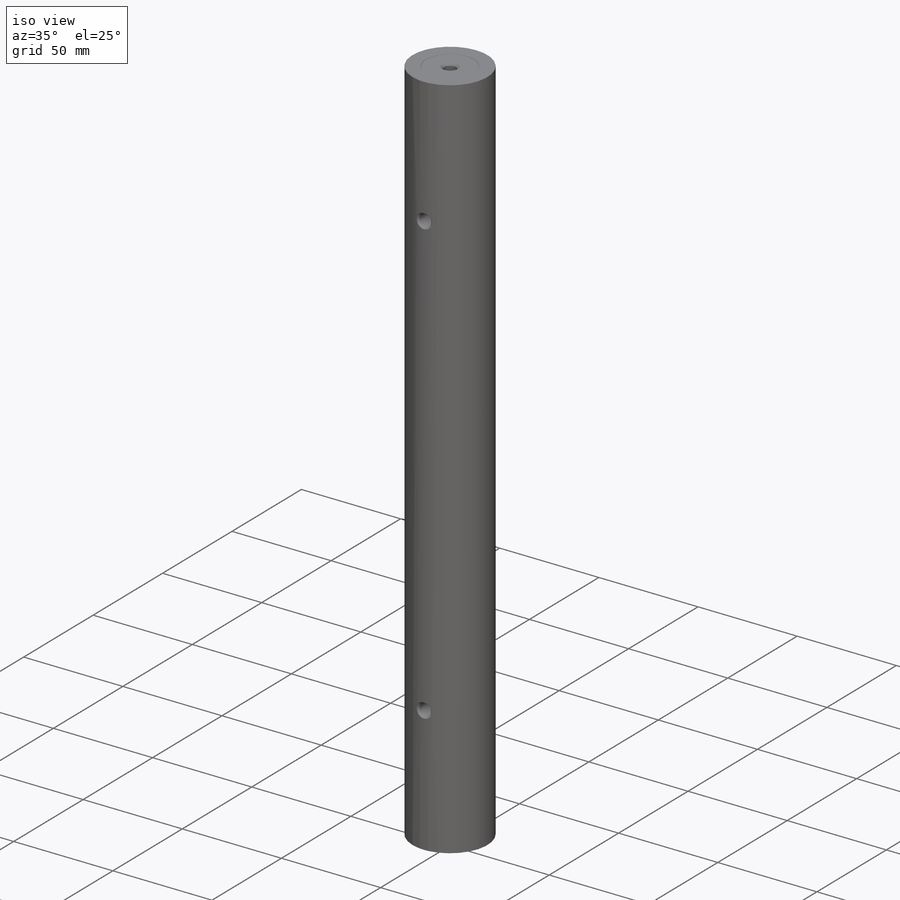
[diagram: iso view]
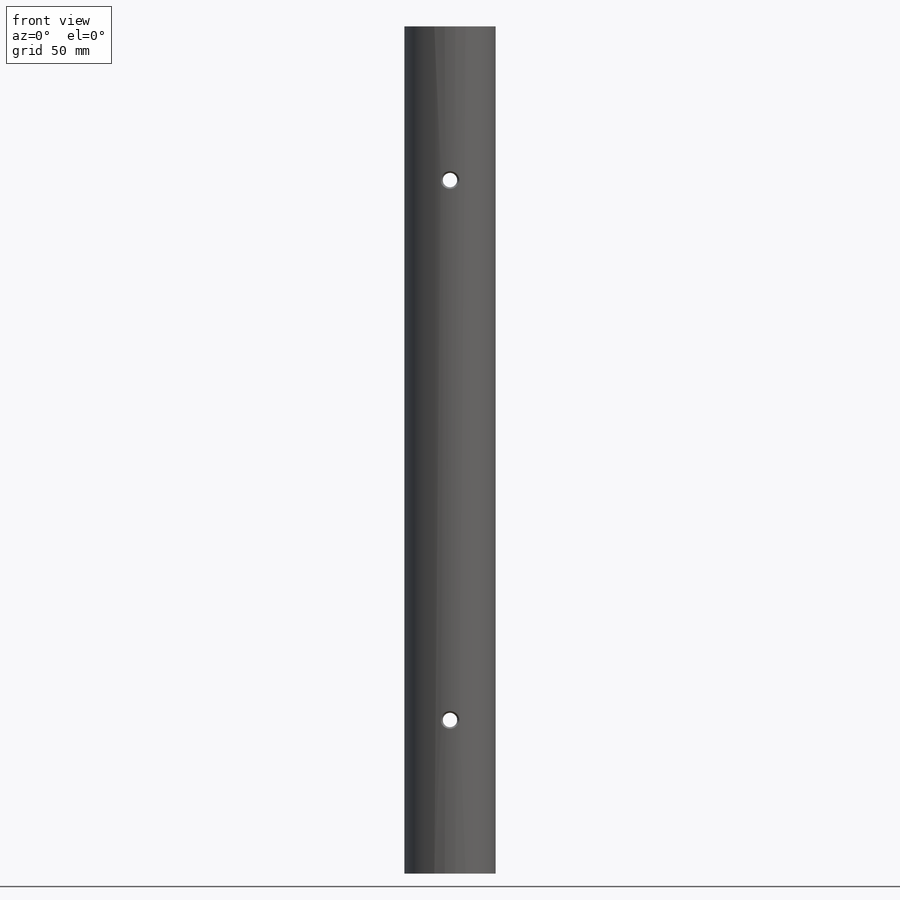
[diagram: front view]
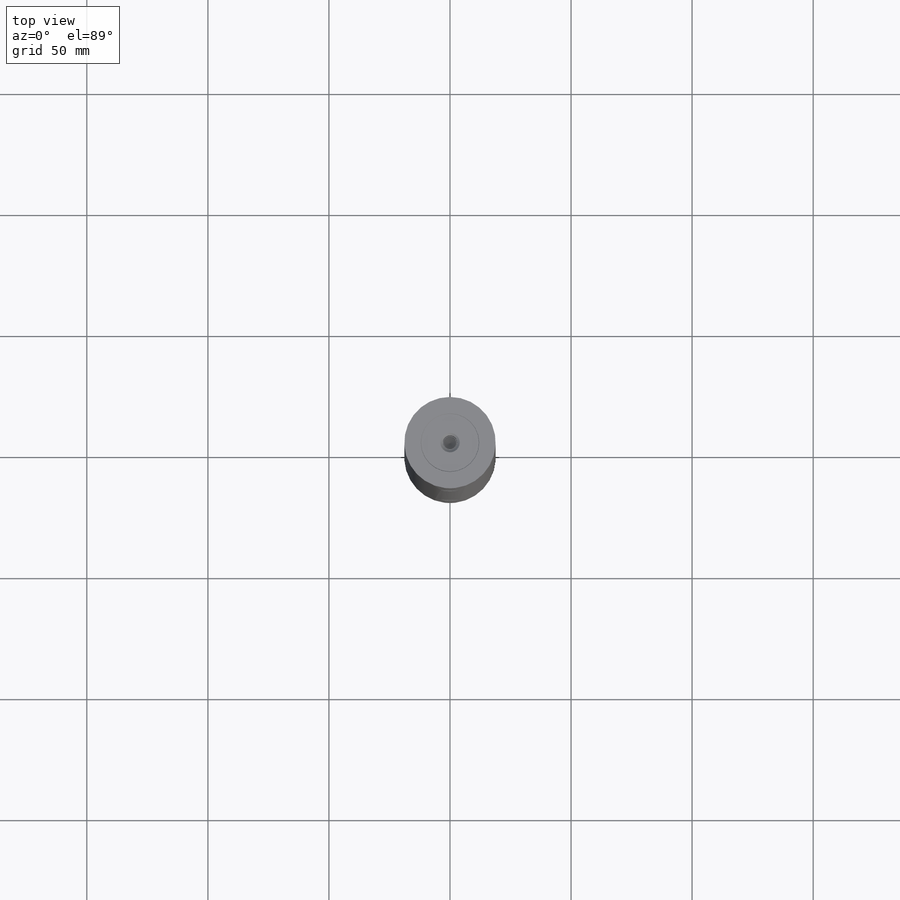
[diagram: top view]
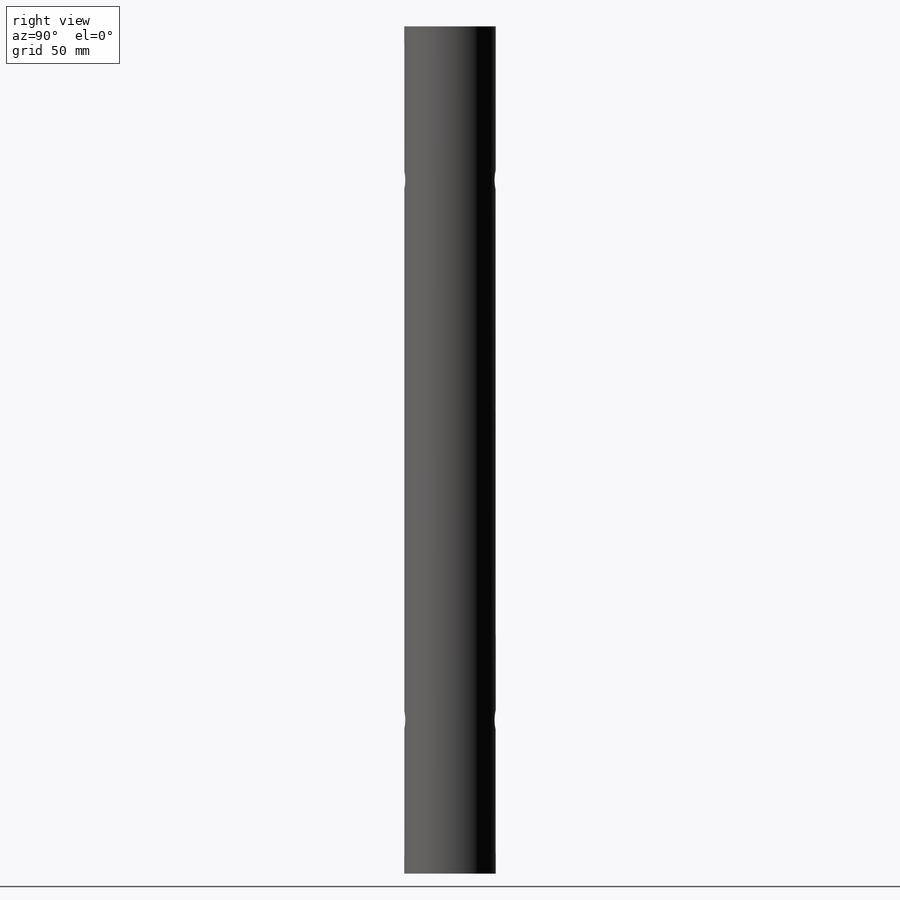
[diagram: right view]
SOLIDWORKS PART (.sldprt)
format: sldprt  version: not decoded by parser v0  size: 198,144 bytes
history: native  units: mm
features: sketch x6, cut_revolve x2, material x1, extrude x1, hole x1, mirror x1, plane x1, cut_extrude x1, chamfer x1 (+13 scaffold rows collapsed)
feature tree (28):
  scaffold x13  (default folders/planes/origin — collapsed)
  material  "Material <not specified>"
  sketch  "Sketch1"  dims[D1=37.7444mm]
  extrude  "Extrude1"  Depth=350.012mm
  sketch  "Sketch3"  dims[c1.D1=0.254mm c1.D2=0.254mm c2.D2=30.0deg c2.D3=11.938mm]
  cut_revolve  "Cut-Revolve1"  Angle=360deg
  hole  "M6x1.0 Tapped Hole1"  Diameter=5mm Depth=13.1572mm
  sketch  "Sketch5"
  sketch  "Sketch6"  dims[hole-wizard template sketch: 28 standard entries collapsed; hole parameters kept: c8.Tap Drill Dia.=5.0mm c8.Tap Drill Depth=13.1572mm c8.Thread Major Dia.=6.0mm c8.Thread Depth=10.16mm c8.D5=~14.816244mm c8.Drill Angle=118.0deg]
  mirror  "Mirror1"
  plane  "Plane1"  Offset=18.8722mm
  sketch  "Sketch7"  dims[D2=5.969mm D1=63.5mm D3=63.5mm]
  cut_extrude  "Cut-Extrude1"  [1 undecoded]
  chamfer  "Chamfer2"  Distance=1.016mm Angle=45deg
  sketch  "Sketch8"  dims[c1.D1=8.763mm c1.D2=0.762mm c1.D3=0.254mm c2.D2=0.762mm c2.D3=0.254mm]
  cut_revolve  "Cut-Revolve3"  Angle=360deg
decode coverage: 10 of 13 modeling features carry decoded parameters
note: ~ marks probable driven/reference dimensions
note: 1 parameter value undecoded
note: suppression state not decoded; provenance and decode notes live in map.json
